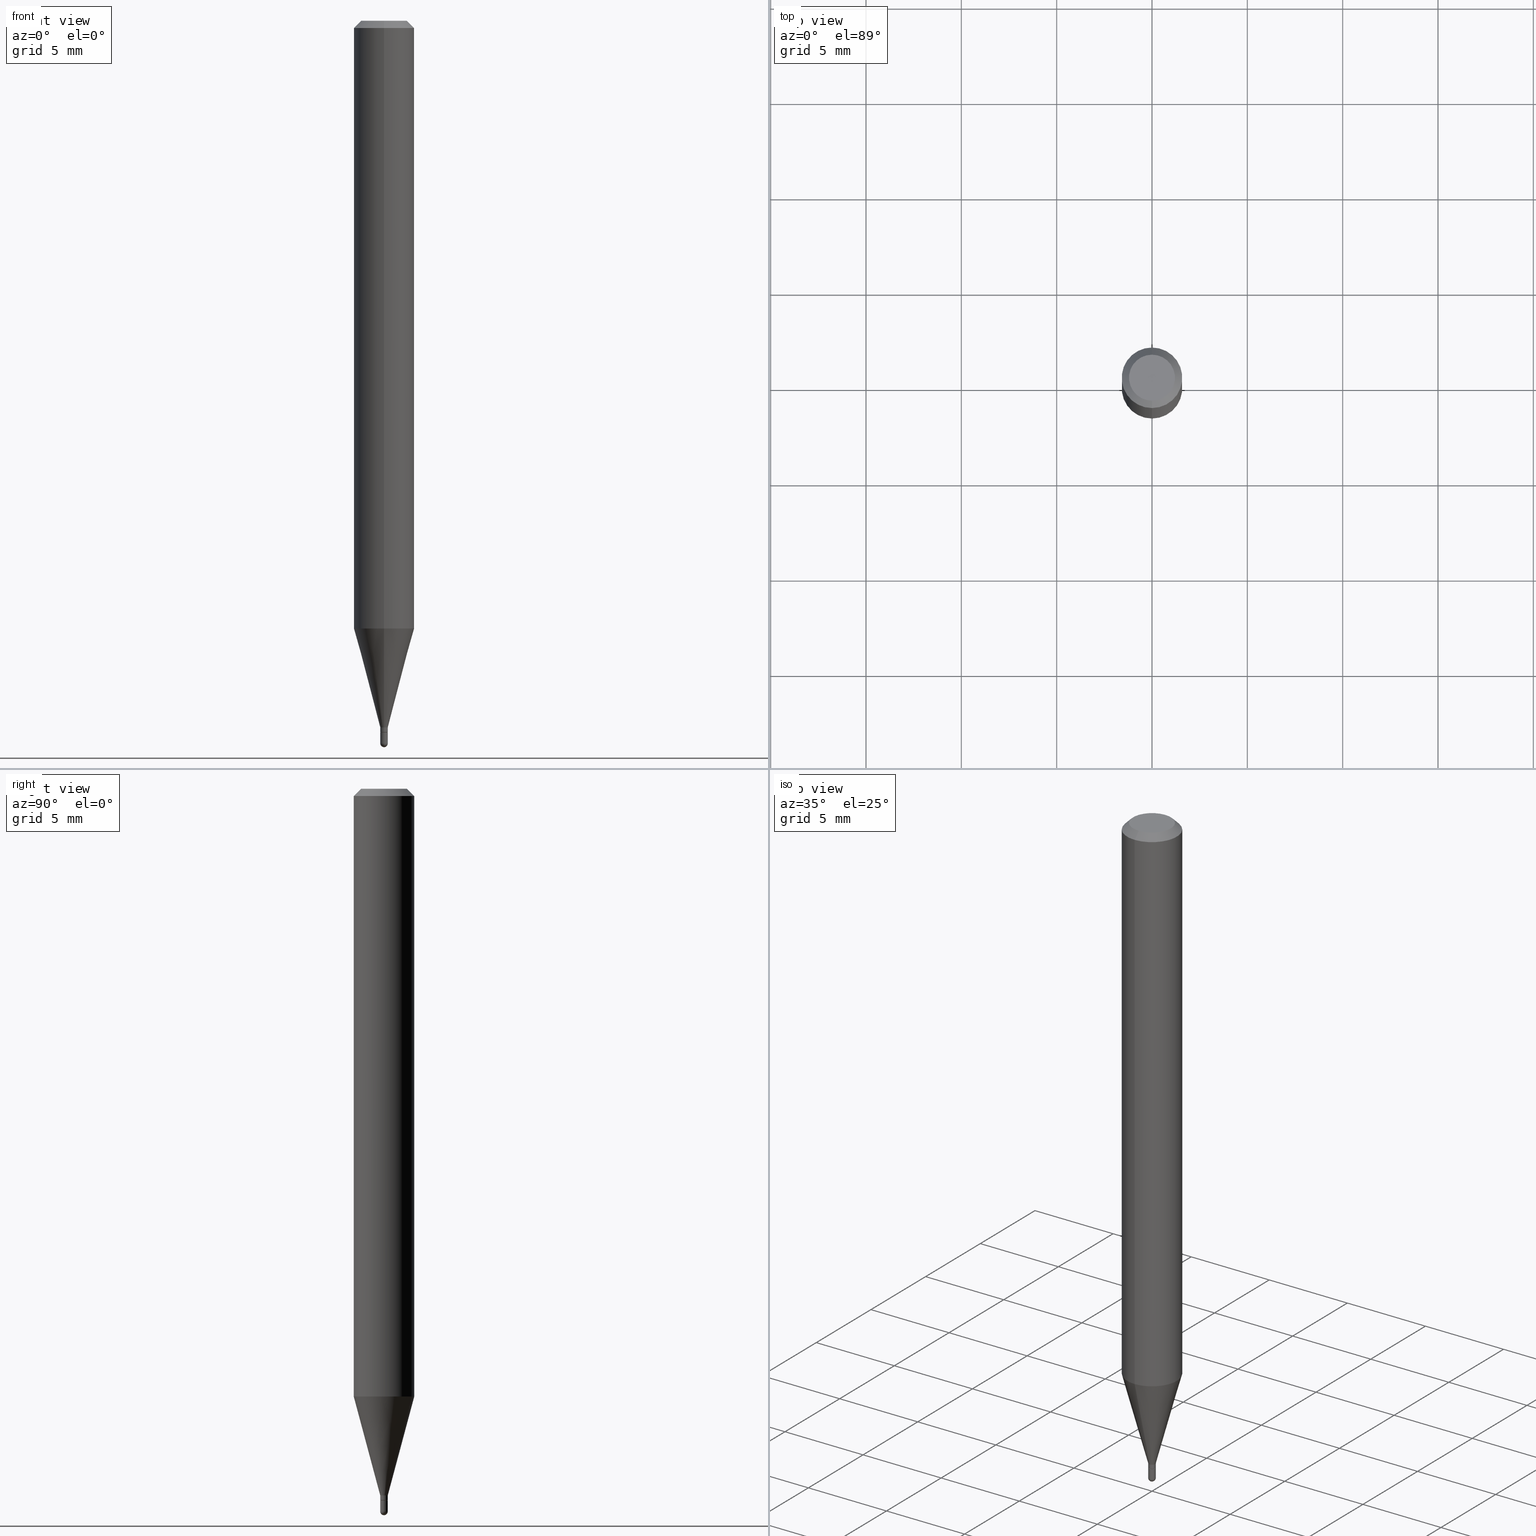
[diagram: canonical four-view strip — front | top / right | iso, engineering-drawing reading convention]
A machine part, canonical four-view strip (front | top / right | iso — engineering-drawing reading convention). The complete STEP part file that produces these views, byte-faithful:
ISO-10303-21;
HEADER;
FILE_DESCRIPTION (( 'STEP AP203' ),
    '1' );
FILE_NAME ('30851.STEP',
    '2024-03-08T15:36:23',
    ( '' ),
    ( '' ),
    'SwSTEP 2.0',
    'SolidWorks 2023',
    '' );
FILE_SCHEMA (( 'CONFIG_CONTROL_DESIGN' ));
ENDSEC;

DATA;
#1 = LINE ( 'NONE', #82, #402 ) ;
#2 = DIRECTION ( 'NONE',  ( 1.000000000000000000, -6.982962677686265922E-15, 4.883557194083112901E-29 ) ) ;
#3 = DIRECTION ( 'NONE',  ( -2.447246345280827304E-29, 3.488935801686874341E-15, 1.000000000000000000 ) ) ;
#4 = CARTESIAN_POINT ( 'NONE',  ( 3.593781258044895133E-29, -5.123502224777175314E-15, -1.468500000000000139 ) ) ;
#5 = CARTESIAN_POINT ( 'NONE',  ( 3.670869517921217028E-31, -5.233403702530276998E-17, -0.01499999999999990230 ) ) ;
#6 = EDGE_CURVE ( 'NONE', #245, #232, #312, .T. ) ;
#7 = AXIS2_PLACEMENT_3D ( 'NONE', #4, #455, #415 ) ;
#8 = EDGE_CURVE ( 'NONE', #104, #285, #114, .T. ) ;
#9 = CARTESIAN_POINT ( 'NONE',  ( 0.000000000000000000, 0.000000000000000000, 0.000000000000000000 ) ) ;
#10 = ORIENTED_EDGE ( 'NONE', *, *, #42, .T. ) ;
#11 = VECTOR ( 'NONE', #39, 39.37007874015748143 ) ;
#12 = ADVANCED_FACE ( 'NONE', ( #261 ), #72, .T. ) ;
#13 = CARTESIAN_POINT ( 'NONE',  ( 3.070943768617102589E-29, -4.378114888170739997E-15, -1.254856820825982044 ) ) ;
#14 = ADVANCED_FACE ( 'NONE', ( #180 ), #257, .T. ) ;
#15 = DIRECTION ( 'NONE',  ( 1.000000000000000000, -6.982962677686283277E-15, 0.000000000000000000 ) ) ;
#16 = VERTEX_POINT ( 'NONE', #78 ) ;
#17 = CARTESIAN_POINT ( 'NONE',  ( 3.570532417764727105E-29, -5.090357334661150945E-15, -1.459000000000000297 ) ) ;
#18 = EDGE_LOOP ( 'NONE', ( #446, #326, #168, #315 ) ) ;
#19 = AXIS2_PLACEMENT_3D ( 'NONE', #262, #511, #469 ) ;
#20 = AXIS2_PLACEMENT_3D ( 'NONE', #258, #290, #25 ) ;
#21 = EDGE_CURVE ( 'NONE', #303, #488, #254, .T. ) ;
#22 = DIRECTION ( 'NONE',  ( -6.982962677686265133E-15, -1.000000000000000000, 3.488935801686873552E-15 ) ) ;
#23 = ORIENTED_EDGE ( 'NONE', *, *, #8, .F. ) ;
#24 = EDGE_LOOP ( 'NONE', ( #137, #134, #477, #164 ) ) ;
#25 = DIRECTION ( 'NONE',  ( -6.982962677686265133E-15, -1.000000000000000000, 3.488935801686874735E-15 ) ) ;
#26 = EDGE_LOOP ( 'NONE', ( #405, #369 ) ) ;
#27 = AXIS2_PLACEMENT_3D ( 'NONE', #502, #209, #282 ) ;
#28 = DIRECTION ( 'NONE',  ( -6.982962677686265922E-15, -1.000000000000000000, 0.000000000000000000 ) ) ;
#29 = DIRECTION ( 'NONE',  ( -4.937700262164679782E-15, -0.7071067811865640040, 0.7071067811865310304 ) ) ;
#30 = APPROVAL_ROLE ( '' ) ;
#31 = DIRECTION ( 'NONE',  ( -2.445468806185136877E-29, 3.491481338843145188E-15, 1.000000000000000000 ) ) ;
#32 = ORIENTED_EDGE ( 'NONE', *, *, #470, .F. ) ;
#33 = AXIS2_PLACEMENT_3D ( 'NONE', #304, #350, #512 ) ;
#34 = AXIS2_PLACEMENT_3D ( 'NONE', #133, #452, #247 ) ;
#35 = CARTESIAN_POINT ( 'NONE',  ( -2.394837331708930478E-45, 3.414218483532660689E-31, 9.785844961325777061E-17 ) ) ;
#36 = CARTESIAN_POINT ( 'NONE',  ( 3.648461522883901316E-29, -5.210943678325075887E-15, -1.492199999999999971 ) ) ;
#37 = MANIFOLD_SOLID_BREP ( 'Body-Move/Copy2[2]', #68 ) ;
#38 = DIRECTION ( 'NONE',  ( 1.000000000000000000, -7.105427357601001070E-15, 4.926315508542082329E-29 ) ) ;
#39 = DIRECTION ( 'NONE',  ( -2.447246345280827024E-29, 3.488935801686874341E-15, 1.000000000000000000 ) ) ;
#40 = ORIENTED_EDGE ( 'NONE', *, *, #433, .F. ) ;
#41 = PRODUCT ( '30851', '30851', '', ( #370 ) ) ;
#42 = EDGE_CURVE ( 'NONE', #373, #245, #341, .T. ) ;
#43 = CARTESIAN_POINT ( 'NONE',  ( 4.364351673553921131E-16, 0.06249999999999996531, -0.01500000000000011914 ) ) ;
#44 = CARTESIAN_POINT ( 'NONE',  ( 3.570532417764727105E-29, -5.090357334661150945E-15, -1.459000000000000297 ) ) ;
#45 = ORIENTED_EDGE ( 'NONE', *, *, #231, .T. ) ;
#46 = ADVANCED_FACE ( 'NONE', ( #189 ), #211, .T. ) ;
#47 = CARTESIAN_POINT ( 'NONE',  ( 5.542233338928623423E-17, 0.007799999999999778465, -2.721369925315684517E-17 ) ) ;
#48 = ORIENTED_EDGE ( 'NONE', *, *, #53, .T. ) ;
#49 = AXIS2_PLACEMENT_3D ( 'NONE', #136, #505, #61 ) ;
#50 = DIRECTION ( 'NONE',  ( -2.447246345280827304E-29, 3.488935801686874341E-15, 1.000000000000000000 ) ) ;
#51 = EDGE_LOOP ( 'NONE', ( #237, #130, #486, #23 ) ) ;
#52 = ORIENTED_EDGE ( 'NONE', *, *, #426, .T. ) ;
#53 = EDGE_CURVE ( 'NONE', #488, #393, #461, .T. ) ;
#54 = LINE ( 'NONE', #366, #266 ) ;
#55 = ORIENTED_EDGE ( 'NONE', *, *, #272, .F. ) ;
#56 = APPROVAL_ROLE ( '' ) ;
#57 = AXIS2_PLACEMENT_3D ( 'NONE', #279, #447, #349 ) ;
#58 = FACE_OUTER_BOUND ( 'NONE', #278, .T. ) ;
#59 = ORIENTED_EDGE ( 'NONE', *, *, #308, .T. ) ;
#60 = DIRECTION ( 'NONE',  ( 1.000000000000000000, 0.000000000000000000, 0.000000000000000000 ) ) ;
#61 = DIRECTION ( 'NONE',  ( -6.982962677686265922E-15, -1.000000000000000000, 0.000000000000000000 ) ) ;
#62 = ORIENTED_EDGE ( 'NONE', *, *, #139, .F. ) ;
#63 = PERSON_AND_ORGANIZATION_ROLE ( 'creator' ) ;
#64 = ADVANCED_FACE ( 'NONE', ( #379 ), #150, .T. ) ;
#65 = FACE_OUTER_BOUND ( 'NONE', #182, .T. ) ;
#66 = CARTESIAN_POINT ( 'NONE',  ( 3.592393676285966338E-29, -5.128986086760581011E-15, -1.469000000000000083 ) ) ;
#67 = APPROVAL_STATUS ( 'not_yet_approved' ) ;
#68 = CLOSED_SHELL ( 'NONE', ( #178, #225, #301, #46, #264, #508, #333, #398, #408, #434, #377, #348 ) ) ;
#69 = AXIS2_PLACEMENT_3D ( 'NONE', #509, #213, #185 ) ;
#70 = CIRCLE ( 'NONE', #482, 0.06250000000000001388 ) ;
#71 = DIRECTION ( 'NONE',  ( 5.024295867788196496E-15, 0.7071067811865688890, 0.7071067811865261454 ) ) ;
#72 = SPHERICAL_SURFACE ( 'NONE', #191, 0.007800000000000195666 ) ;
#73 = PERSON_AND_ORGANIZATION_ROLE ( 'design_owner' ) ;
#74 = CYLINDRICAL_SURFACE ( 'NONE', #69, 0.007799999999999778465 ) ;
#75 = DIRECTION ( 'NONE',  ( -6.982962677686266711E-15, -1.000000000000000000, 0.000000000000000000 ) ) ;
#76 = DIRECTION ( 'NONE',  ( 1.000000000000000000, -6.982962677686283277E-15, 0.000000000000000000 ) ) ;
#77 = CARTESIAN_POINT ( 'NONE',  ( 3.648461522883901316E-29, -5.210943678325075887E-15, -1.492199999999999971 ) ) ;
#78 = CARTESIAN_POINT ( 'NONE',  ( -0.007799999999999999642, -5.114064936901873450E-15, -1.469000000000000083 ) ) ;
#79 = AXIS2_PLACEMENT_3D ( 'NONE', #387, #177, #149 ) ;
#80 = PRODUCT_DEFINITION_FORMATION_WITH_SPECIFIED_SOURCE ( 'ANY', '', #41, .NOT_KNOWN. ) ;
#81 = CARTESIAN_POINT ( 'NONE',  ( 2.497557716197072184E-16, 0.007799999999994547406, -1.459000000000000297 ) ) ;
#82 = CARTESIAN_POINT ( 'NONE',  ( -4.287811248607204268E-16, -0.06250000000000006939, -0.01499999999999968373 ) ) ;
#83 = CIRCLE ( 'NONE', #395, 0.007799999999999999642 ) ;
#84 = LOCAL_TIME ( 10, 36, 23.00000000000000000, #208 ) ;
#85 = DIRECTION ( 'NONE',  ( -2.445468806185136597E-29, 3.491481338843145583E-15, 1.000000000000000000 ) ) ;
#86 =( CONVERSION_BASED_UNIT ( 'INCH', #438 ) LENGTH_UNIT ( ) NAMED_UNIT ( #302 ) );
#87 = CARTESIAN_POINT ( 'NONE',  ( -5.446710888591655276E-17, -0.007800000000005068504, -1.468500000000000139 ) ) ;
#88 = ORIENTED_EDGE ( 'NONE', *, *, #192, .T. ) ;
#89 = CONICAL_SURFACE ( 'NONE', #359, 0.06250000000000001388, 0.7853981633974473908 ) ;
#90 = DIRECTION ( 'NONE',  ( -6.982962677686265922E-15, -1.000000000000000000, 0.000000000000000000 ) ) ;
#91 = ORIENTED_EDGE ( 'NONE', *, *, #352, .F. ) ;
#92 = CARTESIAN_POINT ( 'NONE',  ( 0.000000000000000000, 0.000000000000000000, 0.000000000000000000 ) ) ;
#93 = ORIENTED_EDGE ( 'NONE', *, *, #120, .F. ) ;
#94 = DIRECTION ( 'NONE',  ( 2.447246345280827304E-29, -3.488935801686874341E-15, -1.000000000000000000 ) ) ;
#95 = ORIENTED_EDGE ( 'NONE', *, *, #419, .F. ) ;
#96 = DATE_AND_TIME ( #411, #297 ) ;
#97 = VECTOR ( 'NONE', #71, 39.37007874015748143 ) ;
#98 = LOCAL_TIME ( 10, 36, 23.00000000000000000, #289 ) ;
#99 = DIRECTION ( 'NONE',  ( -1.000000000000000000, 6.982962677686265922E-15, -4.876176775795935793E-29 ) ) ;
#100 = ORIENTED_EDGE ( 'NONE', *, *, #334, .T. ) ;
#101 = CALENDAR_DATE ( 2024, 8, 3 ) ;
#102 = DIRECTION ( 'NONE',  ( -6.982962677686265922E-15, -1.000000000000000000, 4.370956789862821150E-15 ) ) ;
#103 = PERSON_AND_ORGANIZATION ( #427, #298 ) ;
#104 = VERTEX_POINT ( 'NONE', #386 ) ;
#105 = DATE_AND_TIME ( #416, #267 ) ;
#106 = AXIS2_PLACEMENT_3D ( 'NONE', #423, #38, #112 ) ;
#107 = VECTOR ( 'NONE', #127, 39.37007874015748143 ) ;
#108 =( GEOMETRIC_REPRESENTATION_CONTEXT ( 3 ) GLOBAL_UNCERTAINTY_ASSIGNED_CONTEXT ( ( #224 ) ) GLOBAL_UNIT_ASSIGNED_CONTEXT ( ( #86, #356, #311 ) ) REPRESENTATION_CONTEXT ( 'NONE', 'WORKASPACE' ) );
#109 = CARTESIAN_POINT ( 'NONE',  ( 5.446710888598879516E-17, 0.007799999999994870932, -1.469000000000000083 ) ) ;
#110 = ORIENTED_EDGE ( 'NONE', *, *, #419, .T. ) ;
#111 = DATE_AND_TIME ( #325, #84 ) ;
#112 = DIRECTION ( 'NONE',  ( 7.105427357601001070E-15, 1.000000000000000000, 0.000000000000000000 ) ) ;
#113 = DIRECTION ( 'NONE',  ( -2.447246345280827304E-29, 3.488935801686874341E-15, 1.000000000000000000 ) ) ;
#114 = LINE ( 'NONE', #428, #354 ) ;
#115 = AXIS2_PLACEMENT_3D ( 'NONE', #13, #316, #122 ) ;
#116 = PLANE ( 'NONE',  #19 ) ;
#117 = CARTESIAN_POINT ( 'NONE',  ( 3.595004881217535703E-29, -5.125246692678017913E-15, -1.469000000000000083 ) ) ;
#118 = EDGE_LOOP ( 'NONE', ( #449, #88, #240, #199 ) ) ;
#119 = CIRCLE ( 'NONE', #7, 0.007799999999999918977 ) ;
#120 = EDGE_CURVE ( 'NONE', #403, #488, #243, .T. ) ;
#121 = ORIENTED_EDGE ( 'NONE', *, *, #286, .F. ) ;
#122 = DIRECTION ( 'NONE',  ( -6.982962677686265922E-15, -1.000000000000000000, 4.370956789862821150E-15 ) ) ;
#123 = VERTEX_POINT ( 'NONE', #147 ) ;
#124 = DIRECTION ( 'NONE',  ( -6.982962677686265922E-15, -1.000000000000000000, 3.488935801686873946E-15 ) ) ;
#125 = ORIENTED_EDGE ( 'NONE', *, *, #53, .F. ) ;
#126 = CIRCLE ( 'NONE', #27, 0.007799999999999637952 ) ;
#127 = DIRECTION ( 'NONE',  ( -2.447246345280827024E-29, 3.488935801686874341E-15, 1.000000000000000000 ) ) ;
#128 = EDGE_LOOP ( 'NONE', ( #371, #45, #100, #330, #121 ) ) ;
#129 = CYLINDRICAL_SURFACE ( 'NONE', #236, 0.007799999999999778465 ) ;
#130 = ORIENTED_EDGE ( 'NONE', *, *, #234, .T. ) ;
#131 = PERSON_AND_ORGANIZATION_ROLE ( 'design_supplier' ) ;
#132 = ORIENTED_EDGE ( 'NONE', *, *, #287, .T. ) ;
#133 = CARTESIAN_POINT ( 'NONE',  ( 3.595004881217535703E-29, -5.125246692678017913E-15, -1.469000000000000083 ) ) ;
#134 = ORIENTED_EDGE ( 'NONE', *, *, #470, .T. ) ;
#135 = COORDINATED_UNIVERSAL_TIME_OFFSET ( 5, 0, .BEHIND. ) ;
#136 = CARTESIAN_POINT ( 'NONE',  ( 3.570532417764727105E-29, -5.090357334661150945E-15, -1.459000000000000297 ) ) ;
#137 = ORIENTED_EDGE ( 'NONE', *, *, #234, .F. ) ;
#138 = EDGE_CURVE ( 'NONE', #285, #390, #119, .T. ) ;
#139 = EDGE_CURVE ( 'NONE', #500, #16, #244, .T. ) ;
#140 = CARTESIAN_POINT ( 'NONE',  ( 3.593781258044895133E-29, -5.123502224777175314E-15, -1.468500000000000139 ) ) ;
#141 = APPROVAL ( #246, 'UNSPECIFIED' ) ;
#142 = DIRECTION ( 'NONE',  ( -6.982962677686265922E-15, -1.000000000000000000, 3.488935801686874341E-15 ) ) ;
#143 = VERTEX_POINT ( 'NONE', #306 ) ;
#144 = APPROVAL_STATUS ( 'not_yet_approved' ) ;
#145 = PLANE ( 'NONE',  #481 ) ;
#146 = CARTESIAN_POINT ( 'NONE',  ( 3.670869517921217028E-31, -5.233403702530276998E-17, -0.01499999999999990230 ) ) ;
#147 = CARTESIAN_POINT ( 'NONE',  ( -5.446710888591706428E-17, -0.007800000000005307028, -1.492199999999999971 ) ) ;
#148 = FACE_OUTER_BOUND ( 'NONE', #248, .T. ) ;
#149 = DIRECTION ( 'NONE',  ( -6.982962677686265133E-15, -1.000000000000000000, 3.488935801686873552E-15 ) ) ;
#150 = CYLINDRICAL_SURFACE ( 'NONE', #358, 0.007799999999999999642 ) ;
#151 = CONICAL_SURFACE ( 'NONE', #57, 0.007299999999999993994, 0.7853981633974750354 ) ;
#152 = DIRECTION ( 'NONE',  ( -2.447246345280827304E-29, 3.488935801686874341E-15, 1.000000000000000000 ) ) ;
#153 = APPROVAL_PERSON_ORGANIZATION ( #174, #141, #331 ) ;
#154 = EDGE_CURVE ( 'NONE', #104, #322, #435, .T. ) ;
#155 = CARTESIAN_POINT ( 'NONE',  ( 0.007799999999999999642, -5.183453195646533500E-15, -1.469000000000000083 ) ) ;
#156 = PRODUCT_DEFINITION ( 'UNKNOWN', '', #80, #391 ) ;
#157 =( LENGTH_UNIT ( ) NAMED_UNIT ( * ) SI_UNIT ( $, .METRE. ) );
#158 = FACE_OUTER_BOUND ( 'NONE', #207, .T. ) ;
#159 = ORIENTED_EDGE ( 'NONE', *, *, #310, .F. ) ;
#160 = AXIS2_PLACEMENT_3D ( 'NONE', #382, #337, #76 ) ;
#161 = DIRECTION ( 'NONE',  ( -2.445468806185136597E-29, 3.491481338843145583E-15, 1.000000000000000000 ) ) ;
#162 = ORIENTED_EDGE ( 'NONE', *, *, #250, .F. ) ;
#163 = CYLINDRICAL_SURFACE ( 'NONE', #451, 0.007799999999999999642 ) ;
#164 = ORIENTED_EDGE ( 'NONE', *, *, #192, .F. ) ;
#165 = CIRCLE ( 'NONE', #400, 0.007799999999999999642 ) ;
#166 = CIRCLE ( 'NONE', #380, 0.007800000000000195666 ) ;
#167 = DIRECTION ( 'NONE',  ( 1.839019923739600710E-15, 0.2588190451025250138, 0.9659258262890670910 ) ) ;
#168 = ORIENTED_EDGE ( 'NONE', *, *, #251, .T. ) ;
#169 = APPLICATION_PROTOCOL_DEFINITION ( 'international standard', 'config_control_design', 1994, #414 ) ;
#170 = EDGE_LOOP ( 'NONE', ( #95, #410, #93, #318 ) ) ;
#171 = COORDINATED_UNIVERSAL_TIME_OFFSET ( 5, 0, .BEHIND. ) ;
#172 = CARTESIAN_POINT ( 'NONE',  ( 3.649128552589461004E-29, -5.209988453821741932E-15, -1.492199999999999971 ) ) ;
#173 = VERTEX_POINT ( 'NONE', #81 ) ;
#174 = PERSON_AND_ORGANIZATION ( #427, #298 ) ;
#175 = SECURITY_CLASSIFICATION ( '', '', #327 ) ;
#176 = DIRECTION ( 'NONE',  ( -2.447246345280827304E-29, 3.488935801686874341E-15, 1.000000000000000000 ) ) ;
#177 = DIRECTION ( 'NONE',  ( -2.447246345280827304E-29, 3.488935801686874341E-15, 1.000000000000000000 ) ) ;
#178 = ADVANCED_FACE ( 'NONE', ( #376 ), #74, .T. ) ;
#179 = DIRECTION ( 'NONE',  ( -6.982962677686265922E-15, -1.000000000000000000, 0.000000000000000000 ) ) ;
#180 = FACE_OUTER_BOUND ( 'NONE', #170, .T. ) ;
#181 = CARTESIAN_POINT ( 'NONE',  ( -4.364351673553609038E-16, -0.06250000000000437150, -1.254856820825981822 ) ) ;
#182 = EDGE_LOOP ( 'NONE', ( #221, #204 ) ) ;
#183 = CIRCLE ( 'NONE', #355, 0.007799999999999918977 ) ;
#184 = CC_DESIGN_APPROVAL ( #494, ( #156 ) ) ;
#185 = DIRECTION ( 'NONE',  ( -6.982962677686265922E-15, -1.000000000000000000, 3.488935801686873946E-15 ) ) ;
#186 = CARTESIAN_POINT ( 'NONE',  ( -0.007799999999999999642, -5.114064936901873450E-15, -1.492199999999999971 ) ) ;
#187 = ORIENTED_EDGE ( 'NONE', *, *, #287, .F. ) ;
#188 = ADVANCED_BREP_SHAPE_REPRESENTATION ( '30851', ( #375, #37, #314 ), #108 ) ;
#189 = FACE_OUTER_BOUND ( 'NONE', #407, .T. ) ;
#190 = CARTESIAN_POINT ( 'NONE',  ( 5.542233338932499319E-17, 0.007799999999994888279, -1.492199999999999971 ) ) ;
#191 = AXIS2_PLACEMENT_3D ( 'NONE', #214, #219, #28 ) ;
#192 = EDGE_CURVE ( 'NONE', #390, #285, #183, .T. ) ;
#193 = DIRECTION ( 'NONE',  ( -2.447246345280827024E-29, 3.488935801686874341E-15, 1.000000000000000000 ) ) ;
#194 = PRODUCT_DEFINITION_SHAPE ( 'NONE', 'NONE',  #156 ) ;
#195 = ADVANCED_FACE ( 'NONE', ( #65 ), #145, .F. ) ;
#196 = AXIS2_PLACEMENT_3D ( 'NONE', #401, #50, #22 ) ;
#197 = ORIENTED_EDGE ( 'NONE', *, *, #154, .F. ) ;
#198 = CARTESIAN_POINT ( 'NONE',  ( 3.649128552589461004E-29, -5.209988453821741932E-15, -1.492199999999999971 ) ) ;
#199 = ORIENTED_EDGE ( 'NONE', *, *, #201, .F. ) ;
#200 = ORIENTED_EDGE ( 'NONE', *, *, #226, .F. ) ;
#201 = EDGE_CURVE ( 'NONE', #173, #373, #126, .T. ) ;
#202 = CARTESIAN_POINT ( 'NONE',  ( 5.364597654992319424E-17, 0.007299999999994867886, -1.469000000000000083 ) ) ;
#203 = VECTOR ( 'NONE', #443, 39.37007874015748143 ) ;
#204 = ORIENTED_EDGE ( 'NONE', *, *, #286, .T. ) ;
#205 = CARTESIAN_POINT ( 'NONE',  ( 4.440892098500626162E-16, 0.06250000000000001388, -2.180584876054296463E-16 ) ) ;
#206 = VERTEX_POINT ( 'NONE', #335 ) ;
#207 = EDGE_LOOP ( 'NONE', ( #48, #498, #62, #506, #441 ) ) ;
#208 = COORDINATED_UNIVERSAL_TIME_OFFSET ( 5, 0, .BEHIND. ) ;
#209 = DIRECTION ( 'NONE',  ( -2.447246345280827304E-29, 3.488935801686874341E-15, 1.000000000000000000 ) ) ;
#210 = EDGE_CURVE ( 'NONE', #373, #173, #475, .T. ) ;
#211 = CYLINDRICAL_SURFACE ( 'NONE', #79, 0.06250000000000001388 ) ;
#212 = DATE_TIME_ROLE ( 'creation_date' ) ;
#213 = DIRECTION ( 'NONE',  ( -2.447246345280827304E-29, 3.488935801686874341E-15, 1.000000000000000000 ) ) ;
#214 = CARTESIAN_POINT ( 'NONE',  ( 3.648461522883901316E-29, -5.210943678325075887E-15, -1.492199999999999971 ) ) ;
#215 = PERSON_AND_ORGANIZATION ( #427, #298 ) ;
#216 = LINE ( 'NONE', #384, #329 ) ;
#217 = CARTESIAN_POINT ( 'NONE',  ( 3.595004881217535703E-29, -5.125246692678017913E-15, -1.469000000000000083 ) ) ;
#218 = DIRECTION ( 'NONE',  ( -2.445468806185136597E-29, 3.491481338843145583E-15, 1.000000000000000000 ) ) ;
#219 = DIRECTION ( 'NONE',  ( 1.000000000000000000, -6.982962677686265922E-15, 4.883557194083112901E-29 ) ) ;
#220 = AXIS2_PLACEMENT_3D ( 'NONE', #431, #260, #142 ) ;
#221 = ORIENTED_EDGE ( 'NONE', *, *, #139, .T. ) ;
#222 = LINE ( 'NONE', #392, #11 ) ;
#223 = ORIENTED_EDGE ( 'NONE', *, *, #272, .T. ) ;
#224 = UNCERTAINTY_MEASURE_WITH_UNIT (LENGTH_MEASURE( 1.000000000000000082E-05 ), #86, 'distance_accuracy_value', 'NONE');
#225 = ADVANCED_FACE ( 'NONE', ( #292 ), #418, .T. ) ;
#226 = EDGE_CURVE ( 'NONE', #309, #458, #296, .T. ) ;
#227 = ORIENTED_EDGE ( 'NONE', *, *, #210, .F. ) ;
#228 = AXIS2_PLACEMENT_3D ( 'NONE', #17, #319, #90 ) ;
#229 = AXIS2_PLACEMENT_3D ( 'NONE', #217, #152, #467 ) ;
#230 = LINE ( 'NONE', #43, #307 ) ;
#231 = EDGE_CURVE ( 'NONE', #393, #123, #83, .T. ) ;
#232 = VERTEX_POINT ( 'NONE', #256 ) ;
#233 = CC_DESIGN_PERSON_AND_ORGANIZATION_ASSIGNMENT ( #456, #63, ( #156 ) ) ;
#234 = EDGE_CURVE ( 'NONE', #322, #390, #417, .T. ) ;
#235 = FACE_OUTER_BOUND ( 'NONE', #463, .T. ) ;
#236 = AXIS2_PLACEMENT_3D ( 'NONE', #92, #487, #124 ) ;
#237 = ORIENTED_EDGE ( 'NONE', *, *, #154, .T. ) ;
#238 = CARTESIAN_POINT ( 'NONE',  ( 3.670869517921217028E-31, -5.233403702530276998E-17, -0.01499999999999990230 ) ) ;
#239 = EDGE_CURVE ( 'NONE', #403, #500, #216, .T. ) ;
#240 = ORIENTED_EDGE ( 'NONE', *, *, #479, .T. ) ;
#241 = CARTESIAN_POINT ( 'NONE',  ( 3.670869517921217028E-31, -5.233403702530276998E-17, -0.01499999999999990230 ) ) ;
#242 = ORIENTED_EDGE ( 'NONE', *, *, #352, .T. ) ;
#243 = CIRCLE ( 'NONE', #33, 0.007799999999999999642 ) ;
#244 = CIRCLE ( 'NONE', #273, 0.007799999999999999642 ) ;
#245 = VERTEX_POINT ( 'NONE', #181 ) ;
#246 = APPROVAL_STATUS ( 'not_yet_approved' ) ;
#247 = DIRECTION ( 'NONE',  ( -6.982962677686265922E-15, -1.000000000000000000, 0.000000000000000000 ) ) ;
#248 = EDGE_LOOP ( 'NONE', ( #197, #32 ) ) ;
#249 = PERSON_AND_ORGANIZATION ( #427, #298 ) ;
#250 = EDGE_CURVE ( 'NONE', #245, #206, #339, .T. ) ;
#251 = EDGE_CURVE ( 'NONE', #458, #143, #230, .T. ) ;
#252 = APPLICATION_PROTOCOL_DEFINITION ( 'international standard', 'config_control_design', 1994, #473 ) ;
#253 = CARTESIAN_POINT ( 'NONE',  ( 3.070943768617102589E-29, -4.378114888170739997E-15, -1.254856820825982044 ) ) ;
#254 = CIRCLE ( 'NONE', #106, 0.007800000000000195666 ) ;
#255 = VECTOR ( 'NONE', #193, 39.37007874015748143 ) ;
#256 = CARTESIAN_POINT ( 'NONE',  ( 4.440892098500930859E-16, 0.06249999999999560074, -1.254856820825982266 ) ) ;
#257 = SPHERICAL_SURFACE ( 'NONE', #489, 0.007800000000000195666 ) ;
#258 = CARTESIAN_POINT ( 'NONE',  ( -2.394837331708930478E-45, 3.414218483532660689E-31, 9.785844961325777061E-17 ) ) ;
#259 = ORIENTED_EDGE ( 'NONE', *, *, #250, .T. ) ;
#260 = DIRECTION ( 'NONE',  ( -2.447246345280826743E-29, 3.488935801686874341E-15, 1.000000000000000000 ) ) ;
#261 = FACE_OUTER_BOUND ( 'NONE', #324, .T. ) ;
#262 = CARTESIAN_POINT ( 'NONE',  ( 3.316907271900979054E-16, 0.04750000000000004219, -1.167952257734977815E-16 ) ) ;
#263 = DIRECTION ( 'NONE',  ( -2.447246345280827304E-29, 3.488935801686874341E-15, 1.000000000000000000 ) ) ;
#264 = ADVANCED_FACE ( 'NONE', ( #363 ), #510, .T. ) ;
#265 = ORIENTED_EDGE ( 'NONE', *, *, #310, .T. ) ;
#266 = VECTOR ( 'NONE', #167, 39.37007874015748143 ) ;
#267 = LOCAL_TIME ( 10, 36, 23.00000000000000000, #135 ) ;
#268 = DIRECTION ( 'NONE',  ( 6.982962677686265922E-15, 1.000000000000000000, -3.483106191921934765E-15 ) ) ;
#269 = CC_DESIGN_PERSON_AND_ORGANIZATION_ASSIGNMENT ( #450, #413, ( #175 ) ) ;
#270 = CYLINDRICAL_SURFACE ( 'NONE', #196, 0.06250000000000001388 ) ;
#271 = CARTESIAN_POINT ( 'NONE',  ( -0.007799999999999999642, 5.542233338928781195E-17, -3.836769370398826244E-31 ) ) ;
#272 = EDGE_CURVE ( 'NONE', #232, #143, #313, .T. ) ;
#273 = AXIS2_PLACEMENT_3D ( 'NONE', #66, #291, #474 ) ;
#274 = CC_DESIGN_SECURITY_CLASSIFICATION ( #175, ( #80 ) ) ;
#275 = EDGE_LOOP ( 'NONE', ( #280, #242, #362, #288 ) ) ;
#276 = ADVANCED_FACE ( 'NONE', ( #158 ), #163, .T. ) ;
#277 = DIRECTION ( 'NONE',  ( 1.000000000000000000, -6.982962677686283277E-15, 0.000000000000000000 ) ) ;
#278 = EDGE_LOOP ( 'NONE', ( #200, #52, #132, #496 ) ) ;
#279 = CARTESIAN_POINT ( 'NONE',  ( 3.595004881217535703E-29, -5.125246692678017913E-15, -1.469000000000000083 ) ) ;
#280 = ORIENTED_EDGE ( 'NONE', *, *, #210, .T. ) ;
#281 = CARTESIAN_POINT ( 'NONE',  ( 0.000000000000000000, 0.000000000000000000, 0.000000000000000000 ) ) ;
#282 = DIRECTION ( 'NONE',  ( -6.982962677686265922E-15, -1.000000000000000000, 0.000000000000000000 ) ) ;
#283 = CC_DESIGN_DATE_AND_TIME_ASSIGNMENT ( #96, #374, ( #175 ) ) ;
#284 = CIRCLE ( 'NONE', #367, 0.007799999999999999642 ) ;
#285 = VERTEX_POINT ( 'NONE', #87 ) ;
#286 = EDGE_CURVE ( 'NONE', #16, #500, #284, .T. ) ;
#287 = EDGE_CURVE ( 'NONE', #206, #143, #378, .T. ) ;
#288 = ORIENTED_EDGE ( 'NONE', *, *, #42, .F. ) ;
#289 = COORDINATED_UNIVERSAL_TIME_OFFSET ( 5, 0, .BEHIND. ) ;
#290 = DIRECTION ( 'NONE',  ( -2.447246345280827304E-29, 3.488935801686874341E-15, 1.000000000000000000 ) ) ;
#291 = DIRECTION ( 'NONE',  ( -2.445468806185136597E-29, 3.491481338843145583E-15, 1.000000000000000000 ) ) ;
#292 = FACE_OUTER_BOUND ( 'NONE', #51, .T. ) ;
#293 = CARTESIAN_POINT ( 'NONE',  ( 3.840629472727450339E-16, 0.04750000000000004219, -6.786600096686892081E-17 ) ) ;
#294 = ORIENTED_EDGE ( 'NONE', *, *, #6, .T. ) ;
#295 = DATE_AND_TIME ( #501, #344 ) ;
#296 = CIRCLE ( 'NONE', #20, 0.04750000000000004219 ) ;
#297 = LOCAL_TIME ( 10, 36, 23.00000000000000000, #499 ) ;
#298 = ORGANIZATION ( 'UNSPECIFIED', 'UNSPECIFIED', '' ) ;
#299 = CARTESIAN_POINT ( 'NONE',  ( -4.364351673553916694E-16, -0.06250000000000001388, 2.180584876054296463E-16 ) ) ;
#300 = PLANE ( 'NONE',  #220 ) ;
#301 = ADVANCED_FACE ( 'NONE', ( #58 ), #89, .T. ) ;
#302 = DIMENSIONAL_EXPONENTS ( 1.000000000000000000, 0.000000000000000000, 0.000000000000000000, 0.000000000000000000, 0.000000000000000000, 0.000000000000000000, 0.000000000000000000 ) ;
#303 = VERTEX_POINT ( 'NONE', #399 ) ;
#304 = CARTESIAN_POINT ( 'NONE',  ( 3.649128552589461004E-29, -5.209988453821741932E-15, -1.492199999999999971 ) ) ;
#305 = CARTESIAN_POINT ( 'NONE',  ( 5.542233338932299022E-17, 0.007799999999994770318, -1.468500000000000139 ) ) ;
#306 = CARTESIAN_POINT ( 'NONE',  ( 4.440892098500935790E-16, 0.06249999999999996531, -0.01500000000000011914 ) ) ;
#307 = VECTOR ( 'NONE', #484, 39.37007874015748143 ) ;
#308 = EDGE_CURVE ( 'NONE', #390, #173, #437, .T. ) ;
#309 = VERTEX_POINT ( 'NONE', #360 ) ;
#310 = EDGE_CURVE ( 'NONE', #232, #245, #429, .T. ) ;
#311 =( NAMED_UNIT ( * ) SI_UNIT ( $, .STERADIAN. ) SOLID_ANGLE_UNIT ( ) );
#312 = CIRCLE ( 'NONE', #320, 0.06250000000000000000 ) ;
#313 = LINE ( 'NONE', #205, #255 ) ;
#314 = AXIS2_PLACEMENT_3D ( 'NONE', #281, #338, #60 ) ;
#315 = ORIENTED_EDGE ( 'NONE', *, *, #433, .T. ) ;
#316 = DIRECTION ( 'NONE',  ( -2.447246345280827304E-29, 3.488935801686874341E-15, 1.000000000000000000 ) ) ;
#317 = DIRECTION ( 'NONE',  ( -6.982962677686265922E-15, -1.000000000000000000, 3.483106191921934765E-15 ) ) ;
#318 = ORIENTED_EDGE ( 'NONE', *, *, #334, .F. ) ;
#319 = DIRECTION ( 'NONE',  ( -2.447246345280827304E-29, 3.488935801686874341E-15, 1.000000000000000000 ) ) ;
#320 = AXIS2_PLACEMENT_3D ( 'NONE', #253, #420, #102 ) ;
#321 = AXIS2_PLACEMENT_3D ( 'NONE', #241, #404, #317 ) ;
#322 = VERTEX_POINT ( 'NONE', #202 ) ;
#323 = CARTESIAN_POINT ( 'NONE',  ( -5.446710888591464223E-17, -0.007800000000004727631, -1.459000000000000297 ) ) ;
#324 = EDGE_LOOP ( 'NONE', ( #493, #110, #439, #125 ) ) ;
#325 = CALENDAR_DATE ( 2024, 8, 3 ) ;
#326 = ORIENTED_EDGE ( 'NONE', *, *, #389, .F. ) ;
#327 = SECURITY_CLASSIFICATION_LEVEL ( 'unclassified' ) ;
#328 = CC_DESIGN_PERSON_AND_ORGANIZATION_ASSIGNMENT ( #249, #131, ( #80 ) ) ;
#329 = VECTOR ( 'NONE', #31, 39.37007874015748143 ) ;
#330 = ORIENTED_EDGE ( 'NONE', *, *, #239, .T. ) ;
#331 = APPROVAL_ROLE ( '' ) ;
#332 = CARTESIAN_POINT ( 'NONE',  ( 0.000000000000000000, 0.000000000000000000, 0.000000000000000000 ) ) ;
#333 = ADVANCED_FACE ( 'NONE', ( #235 ), #270, .T. ) ;
#334 = EDGE_CURVE ( 'NONE', #123, #403, #165, .T. ) ;
#335 = CARTESIAN_POINT ( 'NONE',  ( -4.364351673553913736E-16, -0.06250000000000006939, -0.01499999999999968373 ) ) ;
#336 = DIRECTION ( 'NONE',  ( -6.982962677686265133E-15, -1.000000000000000000, 3.488935801686874735E-15 ) ) ;
#337 = DIRECTION ( 'NONE',  ( -2.445468806185136597E-29, 3.491481338843145583E-15, 1.000000000000000000 ) ) ;
#338 = DIRECTION ( 'NONE',  ( 0.000000000000000000, 0.000000000000000000, 1.000000000000000000 ) ) ;
#339 = LINE ( 'NONE', #299, #490 ) ;
#340 = DIRECTION ( 'NONE',  ( -6.982962677686265922E-15, -1.000000000000000000, 3.483106191921934765E-15 ) ) ;
#341 = LINE ( 'NONE', #503, #480 ) ;
#342 = PRODUCT_RELATED_PRODUCT_CATEGORY ( 'detail', '', ( #41 ) ) ;
#343 = CONICAL_SURFACE ( 'NONE', #436, 0.06250000000000001388, 0.7853981633974473908 ) ;
#344 = LOCAL_TIME ( 10, 36, 23.00000000000000000, #171 ) ;
#345 = DIRECTION ( 'NONE',  ( 2.438088387897960049E-29, -3.491481338843145188E-15, -1.000000000000000000 ) ) ;
#346 = FACE_OUTER_BOUND ( 'NONE', #26, .T. ) ;
#347 = DIRECTION ( 'NONE',  ( 1.000000000000000000, -6.982962677686266711E-15, 4.876176775795935793E-29 ) ) ;
#348 = ADVANCED_FACE ( 'NONE', ( #445 ), #129, .T. ) ;
#349 = DIRECTION ( 'NONE',  ( -6.982962677686265922E-15, -1.000000000000000000, 0.000000000000000000 ) ) ;
#350 = DIRECTION ( 'NONE',  ( -2.445468806185136597E-29, 3.491481338843145583E-15, 1.000000000000000000 ) ) ;
#351 = EDGE_CURVE ( 'NONE', #393, #16, #406, .T. ) ;
#352 = EDGE_CURVE ( 'NONE', #173, #232, #54, .T. ) ;
#353 = CARTESIAN_POINT ( 'NONE',  ( 0.007799999999999999642, -5.223954379177113961E-15, -1.492199999999999971 ) ) ;
#354 = VECTOR ( 'NONE', #29, 39.37007874015748143 ) ;
#355 = AXIS2_PLACEMENT_3D ( 'NONE', #140, #176, #179 ) ;
#356 =( NAMED_UNIT ( * ) PLANE_ANGLE_UNIT ( ) SI_UNIT ( $, .RADIAN. ) );
#357 = FACE_OUTER_BOUND ( 'NONE', #468, .T. ) ;
#358 = AXIS2_PLACEMENT_3D ( 'NONE', #332, #218, #347 ) ;
#359 = AXIS2_PLACEMENT_3D ( 'NONE', #238, #94, #268 ) ;
#360 = CARTESIAN_POINT ( 'NONE',  ( -3.773273898774342241E-16, -0.04750000000000004219, 2.635829001933844250E-16 ) ) ;
#361 = DIRECTION ( 'NONE',  ( -2.445468806185136597E-29, 3.491481338843145583E-15, 1.000000000000000000 ) ) ;
#362 = ORIENTED_EDGE ( 'NONE', *, *, #6, .F. ) ;
#363 = FACE_OUTER_BOUND ( 'NONE', #275, .T. ) ;
#364 = ORIENTED_EDGE ( 'NONE', *, *, #138, .T. ) ;
#365 = CLOSED_SHELL ( 'NONE', ( #276, #14, #195, #12, #64 ) ) ;
#366 = CARTESIAN_POINT ( 'NONE',  ( 5.542233338932093795E-17, 0.007799999999994547406, -1.459000000000000297 ) ) ;
#367 = AXIS2_PLACEMENT_3D ( 'NONE', #491, #85, #277 ) ;
#368 = APPROVAL_PERSON_ORGANIZATION ( #383, #494, #30 ) ;
#369 = ORIENTED_EDGE ( 'NONE', *, *, #226, .T. ) ;
#370 = MECHANICAL_CONTEXT ( 'NONE', #473, 'mechanical' ) ;
#371 = ORIENTED_EDGE ( 'NONE', *, *, #351, .F. ) ;
#372 = CC_DESIGN_PERSON_AND_ORGANIZATION_ASSIGNMENT ( #103, #497, ( #80 ) ) ;
#373 = VERTEX_POINT ( 'NONE', #323 ) ;
#374 = DATE_TIME_ROLE ( 'classification_date' ) ;
#375 = MANIFOLD_SOLID_BREP ( 'Body-Move/Copy2[1]', #365 ) ;
#376 = FACE_OUTER_BOUND ( 'NONE', #453, .T. ) ;
#377 = ADVANCED_FACE ( 'NONE', ( #495 ), #151, .T. ) ;
#378 = CIRCLE ( 'NONE', #321, 0.06250000000000001388 ) ;
#379 = FACE_OUTER_BOUND ( 'NONE', #128, .T. ) ;
#380 = AXIS2_PLACEMENT_3D ( 'NONE', #77, #422, #75 ) ;
#381 = SHAPE_DEFINITION_REPRESENTATION ( #194, #188 ) ;
#382 = CARTESIAN_POINT ( 'NONE',  ( 3.649128552589461004E-29, -5.209988453821741932E-15, -1.492199999999999971 ) ) ;
#383 = PERSON_AND_ORGANIZATION ( #427, #298 ) ;
#384 = CARTESIAN_POINT ( 'NONE',  ( 0.007799999999999999642, -5.446710888595287733E-17, 3.803417885120829600E-31 ) ) ;
#385 = DIRECTION ( 'NONE',  ( -4.851104656540959542E-15, -0.7071067811865493491, -0.7071067811865456854 ) ) ;
#386 = CARTESIAN_POINT ( 'NONE',  ( -5.097562754707374900E-17, -0.007300000000005119234, -1.469000000000000083 ) ) ;
#387 = CARTESIAN_POINT ( 'NONE',  ( 0.000000000000000000, 0.000000000000000000, 0.000000000000000000 ) ) ;
#388 = APPROVAL_PERSON_ORGANIZATION ( #504, #448, #56 ) ;
#389 = EDGE_CURVE ( 'NONE', #458, #309, #442, .T. ) ;
#390 = VERTEX_POINT ( 'NONE', #305 ) ;
#391 = DESIGN_CONTEXT ( 'detailed design', #414, 'design' ) ;
#392 = CARTESIAN_POINT ( 'NONE',  ( -5.446710888595132426E-17, -0.007799999999999778465, 2.721369925315684517E-17 ) ) ;
#393 = VERTEX_POINT ( 'NONE', #186 ) ;
#394 = DIRECTION ( 'NONE',  ( 2.447246345280827304E-29, -3.488935801686874341E-15, -1.000000000000000000 ) ) ;
#395 = AXIS2_PLACEMENT_3D ( 'NONE', #172, #457, #460 ) ;
#396 = CONICAL_SURFACE ( 'NONE', #464, 0.007799999999999637952, 0.2617993877991502960 ) ;
#397 = CC_DESIGN_DATE_AND_TIME_ASSIGNMENT ( #295, #212, ( #156 ) ) ;
#398 = ADVANCED_FACE ( 'NONE', ( #472 ), #343, .T. ) ;
#399 = CARTESIAN_POINT ( 'NONE',  ( 3.667202664719365644E-29, -5.238654845019720686E-15, -1.500000000000000222 ) ) ;
#400 = AXIS2_PLACEMENT_3D ( 'NONE', #198, #361, #15 ) ;
#401 = CARTESIAN_POINT ( 'NONE',  ( 0.000000000000000000, 0.000000000000000000, 0.000000000000000000 ) ) ;
#402 = VECTOR ( 'NONE', #385, 39.37007874015748143 ) ;
#403 = VERTEX_POINT ( 'NONE', #353 ) ;
#404 = DIRECTION ( 'NONE',  ( -2.447246345280827304E-29, 3.488935801686874341E-15, 1.000000000000000000 ) ) ;
#405 = ORIENTED_EDGE ( 'NONE', *, *, #389, .T. ) ;
#406 = LINE ( 'NONE', #271, #203 ) ;
#407 = EDGE_LOOP ( 'NONE', ( #294, #223, #187, #162 ) ) ;
#408 = ADVANCED_FACE ( 'NONE', ( #346 ), #116, .F. ) ;
#409 = AXIS2_PLACEMENT_3D ( 'NONE', #117, #263, #432 ) ;
#410 = ORIENTED_EDGE ( 'NONE', *, *, #21, .T. ) ;
#411 = CALENDAR_DATE ( 2024, 8, 3 ) ;
#412 = ORIENTED_EDGE ( 'NONE', *, *, #201, .T. ) ;
#413 = PERSON_AND_ORGANIZATION_ROLE ( 'classification_officer' ) ;
#414 = APPLICATION_CONTEXT ( 'configuration controlled 3d designs of mechanical parts and assemblies' ) ;
#415 = DIRECTION ( 'NONE',  ( -6.982962677686265922E-15, -1.000000000000000000, 0.000000000000000000 ) ) ;
#416 = CALENDAR_DATE ( 2024, 8, 3 ) ;
#417 = LINE ( 'NONE', #421, #97 ) ;
#418 = CONICAL_SURFACE ( 'NONE', #34, 0.007299999999999993994, 0.7853981633974750354 ) ;
#419 = EDGE_CURVE ( 'NONE', #303, #123, #166, .T. ) ;
#420 = DIRECTION ( 'NONE',  ( -2.447246345280827304E-29, 3.488935801686874341E-15, 1.000000000000000000 ) ) ;
#421 = CARTESIAN_POINT ( 'NONE',  ( 5.186961971052320720E-17, 0.007299999999994867886, -1.469000000000000083 ) ) ;
#422 = DIRECTION ( 'NONE',  ( -1.000000000000000000, 6.982962677686265922E-15, -4.883557194083112340E-29 ) ) ;
#423 = CARTESIAN_POINT ( 'NONE',  ( 3.648461522883901316E-29, -5.210943678325075887E-15, -1.492199999999999971 ) ) ;
#424 = DIRECTION ( 'NONE',  ( 6.982962677686265922E-15, 1.000000000000000000, -3.483106191921934765E-15 ) ) ;
#425 = DIRECTION ( 'NONE',  ( -1.807323732225330534E-15, -0.2588190451025182415, 0.9659258262890689783 ) ) ;
#426 = EDGE_CURVE ( 'NONE', #309, #206, #1, .T. ) ;
#427 = PERSON ( 'UNSPECIFIED', 'UNSPECIFIED', 'UNSPECIFIED', ('UNSPECIFIED'), ('UNSPECIFIED'), ('UNSPECIFIED') ) ;
#428 = CARTESIAN_POINT ( 'NONE',  ( -5.097562754707374900E-17, -0.007300000000005119234, -1.469000000000000083 ) ) ;
#429 = CIRCLE ( 'NONE', #115, 0.06250000000000000000 ) ;
#430 = CIRCLE ( 'NONE', #229, 0.007299999999999993994 ) ;
#431 = CARTESIAN_POINT ( 'NONE',  ( 3.595004881217535703E-29, -5.125246692678017913E-15, -1.469000000000000083 ) ) ;
#432 = DIRECTION ( 'NONE',  ( -6.982962677686265922E-15, -1.000000000000000000, 0.000000000000000000 ) ) ;
#433 = EDGE_CURVE ( 'NONE', #143, #206, #70, .T. ) ;
#434 = ADVANCED_FACE ( 'NONE', ( #148 ), #300, .F. ) ;
#435 = CIRCLE ( 'NONE', #409, 0.007299999999999993994 ) ;
#436 = AXIS2_PLACEMENT_3D ( 'NONE', #5, #394, #424 ) ;
#437 = LINE ( 'NONE', #47, #107 ) ;
#438 = LENGTH_MEASURE_WITH_UNIT ( LENGTH_MEASURE( 0.02539999999999999897 ), #157 );
#439 = ORIENTED_EDGE ( 'NONE', *, *, #231, .F. ) ;
#440 = DIRECTION ( 'NONE',  ( -6.982962677686265922E-15, -1.000000000000000000, 0.000000000000000000 ) ) ;
#441 = ORIENTED_EDGE ( 'NONE', *, *, #120, .T. ) ;
#442 = CIRCLE ( 'NONE', #462, 0.04750000000000004219 ) ;
#443 = DIRECTION ( 'NONE',  ( -2.445468806185136877E-29, 3.491481338843145188E-15, 1.000000000000000000 ) ) ;
#444 = ORIENTED_EDGE ( 'NONE', *, *, #479, .F. ) ;
#445 = FACE_OUTER_BOUND ( 'NONE', #118, .T. ) ;
#446 = ORIENTED_EDGE ( 'NONE', *, *, #426, .F. ) ;
#447 = DIRECTION ( 'NONE',  ( -2.447246345280827304E-29, 3.488935801686874341E-15, 1.000000000000000000 ) ) ;
#448 = APPROVAL ( #67, 'UNSPECIFIED' ) ;
#449 = ORIENTED_EDGE ( 'NONE', *, *, #308, .F. ) ;
#450 = PERSON_AND_ORGANIZATION ( #427, #298 ) ;
#451 = AXIS2_PLACEMENT_3D ( 'NONE', #9, #161, #483 ) ;
#452 = DIRECTION ( 'NONE',  ( -2.447246345280827304E-29, 3.488935801686874341E-15, 1.000000000000000000 ) ) ;
#453 = EDGE_LOOP ( 'NONE', ( #364, #59, #227, #444 ) ) ;
#454 = APPROVAL_DATE_TIME ( #507, #494 ) ;
#455 = DIRECTION ( 'NONE',  ( -2.447246345280827304E-29, 3.488935801686874341E-15, 1.000000000000000000 ) ) ;
#456 = PERSON_AND_ORGANIZATION ( #427, #298 ) ;
#457 = DIRECTION ( 'NONE',  ( -2.445468806185136597E-29, 3.491481338843145583E-15, 1.000000000000000000 ) ) ;
#458 = VERTEX_POINT ( 'NONE', #293 ) ;
#459 = APPROVAL_DATE_TIME ( #105, #141 ) ;
#460 = DIRECTION ( 'NONE',  ( 1.000000000000000000, -6.982962677686283277E-15, 0.000000000000000000 ) ) ;
#461 = CIRCLE ( 'NONE', #160, 0.007799999999999999642 ) ;
#462 = AXIS2_PLACEMENT_3D ( 'NONE', #35, #3, #336 ) ;
#463 = EDGE_LOOP ( 'NONE', ( #55, #265, #259, #40 ) ) ;
#464 = AXIS2_PLACEMENT_3D ( 'NONE', #44, #485, #440 ) ;
#465 = APPROVAL_DATE_TIME ( #111, #448 ) ;
#466 = DIRECTION ( 'NONE',  ( -2.447246345280827024E-29, 3.488935801686874341E-15, 1.000000000000000000 ) ) ;
#467 = DIRECTION ( 'NONE',  ( -6.982962677686265922E-15, -1.000000000000000000, 0.000000000000000000 ) ) ;
#468 = EDGE_LOOP ( 'NONE', ( #91, #412, #10, #159 ) ) ;
#469 = DIRECTION ( 'NONE',  ( 6.982962677686265922E-15, 1.000000000000000000, -3.488935801686874341E-15 ) ) ;
#470 = EDGE_CURVE ( 'NONE', #322, #104, #430, .T. ) ;
#471 = DIRECTION ( 'NONE',  ( -6.982962677686265922E-15, -1.000000000000000000, 0.000000000000000000 ) ) ;
#472 = FACE_OUTER_BOUND ( 'NONE', #18, .T. ) ;
#473 = APPLICATION_CONTEXT ( 'configuration controlled 3d designs of mechanical parts and assemblies' ) ;
#474 = DIRECTION ( 'NONE',  ( 1.000000000000000000, -6.982962677686283277E-15, 0.000000000000000000 ) ) ;
#475 = CIRCLE ( 'NONE', #49, 0.007799999999999637952 ) ;
#476 = CC_DESIGN_APPROVAL ( #141, ( #175 ) ) ;
#477 = ORIENTED_EDGE ( 'NONE', *, *, #8, .T. ) ;
#478 = CC_DESIGN_PERSON_AND_ORGANIZATION_ASSIGNMENT ( #215, #73, ( #41 ) ) ;
#479 = EDGE_CURVE ( 'NONE', #285, #373, #222, .T. ) ;
#480 = VECTOR ( 'NONE', #425, 39.37007874015748143 ) ;
#481 = AXIS2_PLACEMENT_3D ( 'NONE', #109, #345, #99 ) ;
#482 = AXIS2_PLACEMENT_3D ( 'NONE', #146, #113, #340 ) ;
#483 = DIRECTION ( 'NONE',  ( 1.000000000000000000, -6.982962677686266711E-15, 4.876176775795935793E-29 ) ) ;
#484 = DIRECTION ( 'NONE',  ( 4.937700262164543309E-15, 0.7071067811865444641, -0.7071067811865505703 ) ) ;
#485 = DIRECTION ( 'NONE',  ( -2.447246345280827304E-29, 3.488935801686874341E-15, 1.000000000000000000 ) ) ;
#486 = ORIENTED_EDGE ( 'NONE', *, *, #138, .F. ) ;
#487 = DIRECTION ( 'NONE',  ( -2.447246345280827304E-29, 3.488935801686874341E-15, 1.000000000000000000 ) ) ;
#488 = VERTEX_POINT ( 'NONE', #190 ) ;
#489 = AXIS2_PLACEMENT_3D ( 'NONE', #36, #2, #471 ) ;
#490 = VECTOR ( 'NONE', #466, 39.37007874015748143 ) ;
#491 = CARTESIAN_POINT ( 'NONE',  ( 3.592393676285966338E-29, -5.128986086760581011E-15, -1.469000000000000083 ) ) ;
#492 = CC_DESIGN_APPROVAL ( #448, ( #80 ) ) ;
#493 = ORIENTED_EDGE ( 'NONE', *, *, #21, .F. ) ;
#494 = APPROVAL ( #144, 'UNSPECIFIED' ) ;
#495 = FACE_OUTER_BOUND ( 'NONE', #24, .T. ) ;
#496 = ORIENTED_EDGE ( 'NONE', *, *, #251, .F. ) ;
#497 = PERSON_AND_ORGANIZATION_ROLE ( 'creator' ) ;
#498 = ORIENTED_EDGE ( 'NONE', *, *, #351, .T. ) ;
#499 = COORDINATED_UNIVERSAL_TIME_OFFSET ( 5, 0, .BEHIND. ) ;
#500 = VERTEX_POINT ( 'NONE', #155 ) ;
#501 = CALENDAR_DATE ( 2024, 8, 3 ) ;
#502 = CARTESIAN_POINT ( 'NONE',  ( 3.570532417764727105E-29, -5.090357334661150945E-15, -1.459000000000000297 ) ) ;
#503 = CARTESIAN_POINT ( 'NONE',  ( -5.446710888591464223E-17, -0.007800000000004727631, -1.459000000000000297 ) ) ;
#504 = PERSON_AND_ORGANIZATION ( #427, #298 ) ;
#505 = DIRECTION ( 'NONE',  ( -2.447246345280827304E-29, 3.488935801686874341E-15, 1.000000000000000000 ) ) ;
#506 = ORIENTED_EDGE ( 'NONE', *, *, #239, .F. ) ;
#507 = DATE_AND_TIME ( #101, #98 ) ;
#508 = ADVANCED_FACE ( 'NONE', ( #357 ), #396, .T. ) ;
#509 = CARTESIAN_POINT ( 'NONE',  ( 0.000000000000000000, 0.000000000000000000, 0.000000000000000000 ) ) ;
#510 = CONICAL_SURFACE ( 'NONE', #228, 0.007799999999999637952, 0.2617993877991502960 ) ;
#511 = DIRECTION ( 'NONE',  ( 2.447246345280826743E-29, -3.488935801686874341E-15, -1.000000000000000000 ) ) ;
#512 = DIRECTION ( 'NONE',  ( 1.000000000000000000, -6.982962677686283277E-15, 0.000000000000000000 ) ) ;
ENDSEC;
END-ISO-10303-21;
